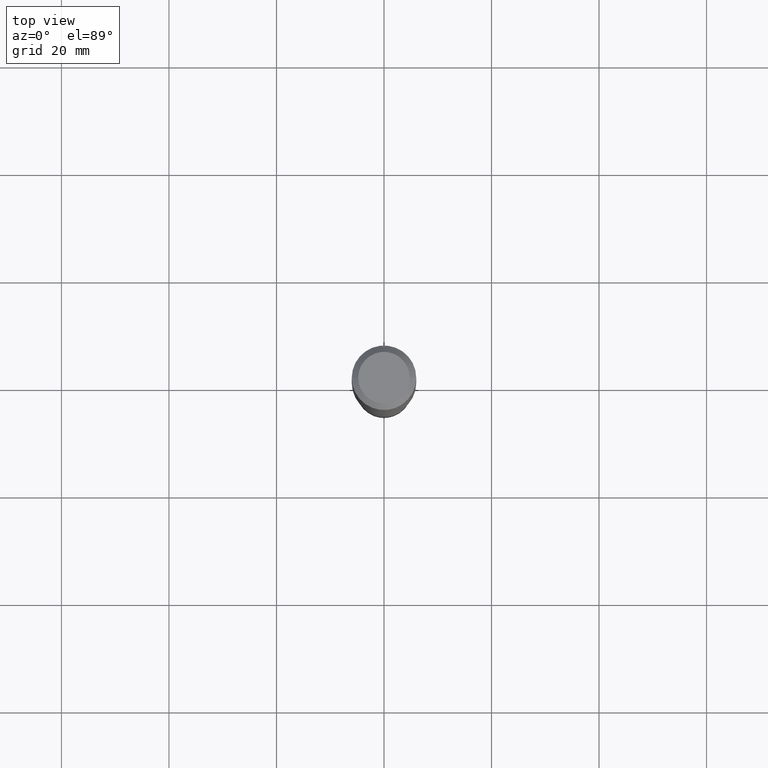
[diagram: clean part render]
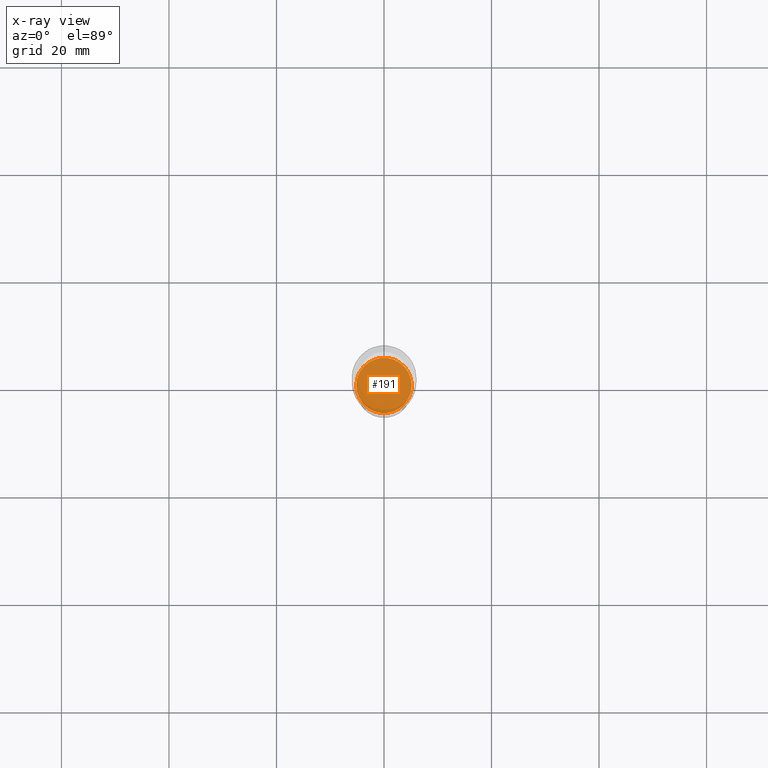
[diagram: x-ray — body ghosted, one internal face saturated and labeled with its STEP entity id]
A machine part, top view, then the same camera in x-ray: the body is ghosted and one INTERNAL B-rep face — a face not visible from any outside direction — is saturated and labeled: STEP entity #191.
In plain terms, the highlighted planar face has unit normal (-0, 0, 1).
Its self-contained STEP definition (entity closure, byte-faithful):
#2 = DIRECTION ( 'NONE',  ( -2.445468806185136597E-29, 3.491481338843145583E-15, 1.000000000000000000 ) ) ;
#53 = VERTEX_POINT ( 'NONE', #457 ) ;
#84 = CARTESIAN_POINT ( 'NONE',  ( 8.087165342054247524E-29, -1.154632878755428372E-14, -3.307000000000000384 ) ) ;
#94 = ORIENTED_EDGE ( 'NONE', *, *, #139, .F. ) ;
#112 = DIRECTION ( 'NONE',  ( -2.438088387897960049E-29, 3.491481338843145188E-15, 1.000000000000000000 ) ) ;
#125 = DIRECTION ( 'NONE',  ( 1.000000000000000000, -6.982962677686265922E-15, 0.000000000000000000 ) ) ;
#126 = DIRECTION ( 'NONE',  ( -2.445468806185136597E-29, 3.491481338843145583E-15, 1.000000000000000000 ) ) ;
#139 = EDGE_CURVE ( 'NONE', #53, #452, #188, .T. ) ;
#185 = CARTESIAN_POINT ( 'NONE',  ( 8.087165342054247524E-29, -1.154632878755428372E-14, -3.307000000000000384 ) ) ;
#188 = CIRCLE ( 'NONE', #389, 0.2026000000000000023 ) ;
#191 = ADVANCED_FACE ( 'NONE', ( #507 ), #233, .F. ) ;
#225 = AXIS2_PLACEMENT_3D ( 'NONE', #373, #126, #445 ) ;
#233 = PLANE ( 'NONE',  #317 ) ;
#270 = DIRECTION ( 'NONE',  ( 1.000000000000000000, -6.982962677686265922E-15, 4.876176775795935793E-29 ) ) ;
#275 = ORIENTED_EDGE ( 'NONE', *, *, #381, .F. ) ;
#317 = AXIS2_PLACEMENT_3D ( 'NONE', #185, #112, #270 ) ;
#336 = EDGE_LOOP ( 'NONE', ( #275, #94 ) ) ;
#373 = CARTESIAN_POINT ( 'NONE',  ( 8.087165342054247524E-29, -1.154632878755428372E-14, -3.307000000000000384 ) ) ;
#381 = EDGE_CURVE ( 'NONE', #452, #53, #450, .T. ) ;
#385 = CARTESIAN_POINT ( 'NONE',  ( 0.2026000000000000023, -1.296107702605352070E-14, -3.307000000000000384 ) ) ;
#389 = AXIS2_PLACEMENT_3D ( 'NONE', #84, #2, #125 ) ;
#445 = DIRECTION ( 'NONE',  ( 1.000000000000000000, -6.982962677686265922E-15, 0.000000000000000000 ) ) ;
#450 = CIRCLE ( 'NONE', #225, 0.2026000000000000023 ) ;
#452 = VERTEX_POINT ( 'NONE', #385 ) ;
#457 = CARTESIAN_POINT ( 'NONE',  ( -0.2026000000000000023, -1.010411997773020953E-14, -3.307000000000000384 ) ) ;
#507 = FACE_OUTER_BOUND ( 'NONE', #336, .T. ) ;